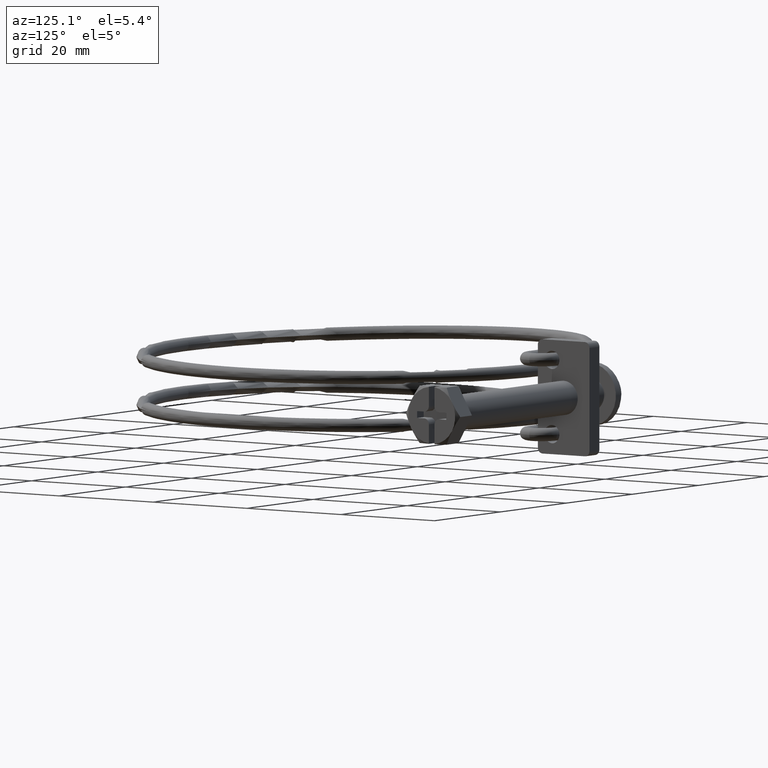
[diagram: clean part render]
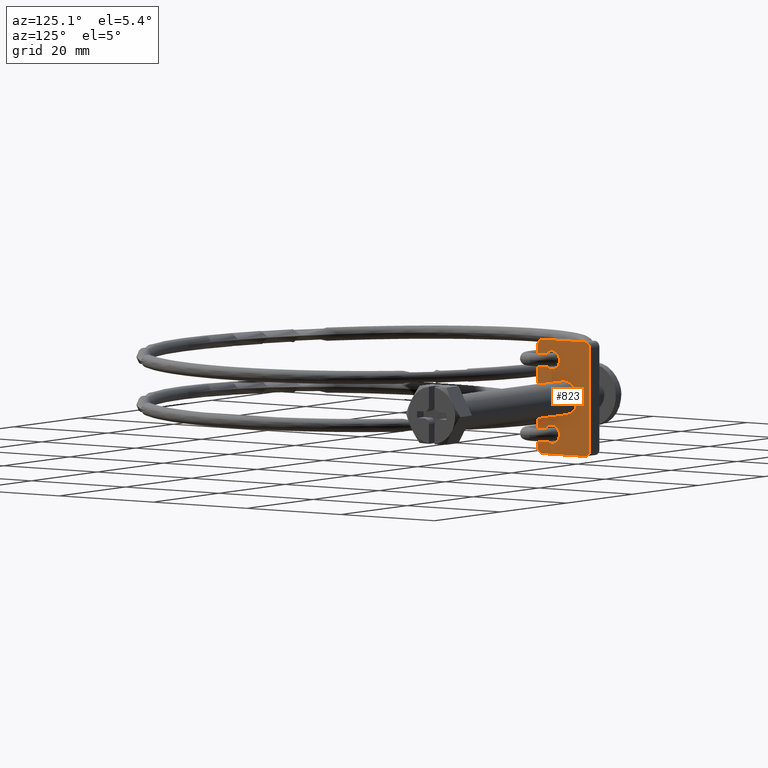
[diagram: same view with one face highlighted and labeled with its STEP entity id]
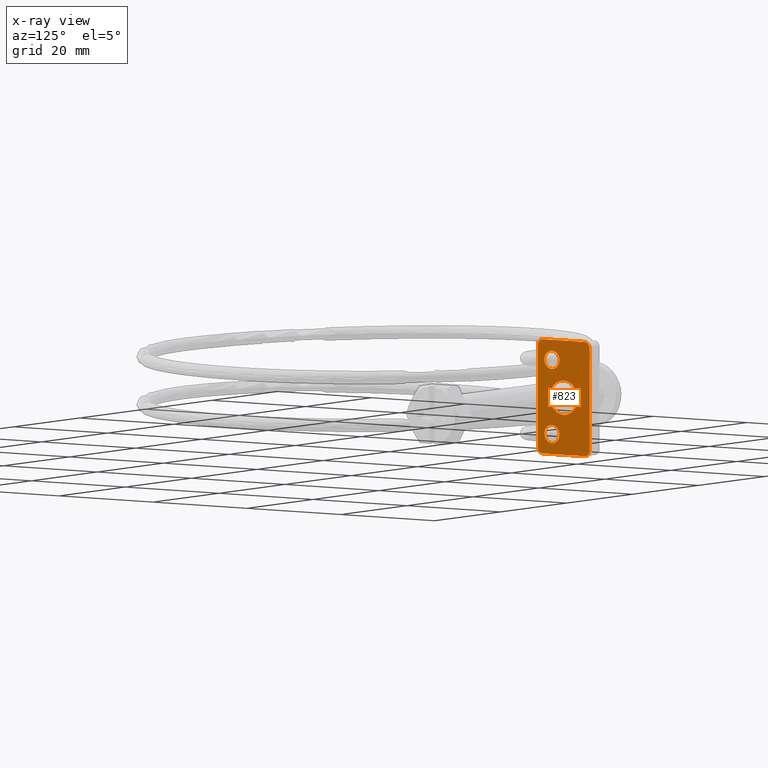
[diagram: x-ray of the same camera — body ghosted, the highlighted face saturated]
A machine part, auxiliary view. The second image highlights one B-rep face of the part: STEP entity #823.
The next image is the same camera in x-ray: the body ghosted, the highlighted face saturated — about 0% of this face is hidden behind the body in this view.
In plain terms, the highlighted planar face has unit normal (1, 0, 0).
Its self-contained STEP definition (entity closure, byte-faithful):
#2 = CARTESIAN_POINT ( 'NONE',  ( 1.500000000000000000, 3.673940397442060400E-016, 3.000000000000000400 ) ) ;
#14 = AXIS2_PLACEMENT_3D ( 'NONE', #476, #2150, #718 ) ;
#40 = CARTESIAN_POINT ( 'NONE',  ( 1.500000000000000000, 0.0000000000000000000, 0.0000000000000000000 ) ) ;
#56 = VECTOR ( 'NONE', #1395, 1000.000000000000000 ) ;
#95 = EDGE_CURVE ( 'NONE', #731, #2299, #675, .T. ) ;
#97 = ORIENTED_EDGE ( 'NONE', *, *, #1389, .F. ) ;
#130 = VERTEX_POINT ( 'NONE', #1800 ) ;
#137 = ORIENTED_EDGE ( 'NONE', *, *, #2644, .T. ) ;
#149 = EDGE_CURVE ( 'NONE', #1674, #2841, #837, .T. ) ;
#172 = VECTOR ( 'NONE', #2662, 1000.000000000000000 ) ;
#184 = AXIS2_PLACEMENT_3D ( 'NONE', #2959, #1984, #553 ) ;
#187 = VECTOR ( 'NONE', #3028, 1000.000000000000000 ) ;
#192 = CARTESIAN_POINT ( 'NONE',  ( 1.500000000000000000, 0.0000000000000000000, -3.000000000000000400 ) ) ;
#210 = ORIENTED_EDGE ( 'NONE', *, *, #2596, .F. ) ;
#235 = ORIENTED_EDGE ( 'NONE', *, *, #403, .F. ) ;
#245 = CARTESIAN_POINT ( 'NONE',  ( 1.500000000000000000, -5.500000000000000000, 10.00000000000000000 ) ) ;
#285 = DIRECTION ( 'NONE',  ( 0.0000000000000000000, 0.0000000000000000000, -1.000000000000000000 ) ) ;
#306 = CARTESIAN_POINT ( 'NONE',  ( 1.500000000000000000, 0.0000000000000000000, 0.0000000000000000000 ) ) ;
#308 = DIRECTION ( 'NONE',  ( 1.000000000000000000, 0.0000000000000000000, 0.0000000000000000000 ) ) ;
#403 = EDGE_CURVE ( 'NONE', #3110, #2311, #874, .T. ) ;
#432 = CARTESIAN_POINT ( 'NONE',  ( 1.500000000000000000, 5.500000000000000000, 9.000000000000001800 ) ) ;
#476 = CARTESIAN_POINT ( 'NONE',  ( 1.500000000000000000, -2.499999999999999100, -6.500000000000000000 ) ) ;
#541 = DIRECTION ( 'NONE',  ( 0.0000000000000000000, 0.0000000000000000000, -1.000000000000000000 ) ) ;
#546 = EDGE_CURVE ( 'NONE', #1681, #1674, #1146, .T. ) ;
#553 = DIRECTION ( 'NONE',  ( 0.0000000000000000000, 0.0000000000000000000, -1.000000000000000000 ) ) ;
#567 = DIRECTION ( 'NONE',  ( 1.000000000000000000, 0.0000000000000000000, 0.0000000000000000000 ) ) ;
#588 = CARTESIAN_POINT ( 'NONE',  ( 1.500000000000000000, 5.500000000000000000, 10.00000000000000000 ) ) ;
#605 = AXIS2_PLACEMENT_3D ( 'NONE', #1169, #2863, #1403 ) ;
#637 = VERTEX_POINT ( 'NONE', #853 ) ;
#647 = ORIENTED_EDGE ( 'NONE', *, *, #2888, .T. ) ;
#675 = LINE ( 'NONE', #588, #976 ) ;
#687 = CIRCLE ( 'NONE', #1898, 3.000000000000000400 ) ;
#688 = EDGE_CURVE ( 'NONE', #1711, #2941, #1629, .T. ) ;
#704 = CARTESIAN_POINT ( 'NONE',  ( 1.500000000000000000, -2.499999999999999100, 6.500000000000000000 ) ) ;
#718 = DIRECTION ( 'NONE',  ( 0.0000000000000000000, 0.0000000000000000000, -1.000000000000000000 ) ) ;
#721 = CIRCLE ( 'NONE', #2883, 1.599999999999999900 ) ;
#731 = VERTEX_POINT ( 'NONE', #933 ) ;
#748 = ORIENTED_EDGE ( 'NONE', *, *, #3111, .F. ) ;
#784 = AXIS2_PLACEMENT_3D ( 'NONE', #1992, #567, #2250 ) ;
#802 = CARTESIAN_POINT ( 'NONE',  ( 1.500000000000000000, -5.500000000000000000, 9.000000000000001800 ) ) ;
#803 = CARTESIAN_POINT ( 'NONE',  ( 1.500000000000000000, -2.499999999999999100, -8.099999999999999600 ) ) ;
#806 = CARTESIAN_POINT ( 'NONE',  ( 1.500000000000000000, -5.500000000000000000, -9.000000000000003600 ) ) ;
#823 = ADVANCED_FACE ( 'NONE', ( #1114, #2371, #2303, #2964 ), #2717, .T. ) ;
#837 = LINE ( 'NONE', #1577, #187 ) ;
#853 = CARTESIAN_POINT ( 'NONE',  ( 1.500000000000000000, -2.499999999999999100, -4.899999999999998600 ) ) ;
#874 = CIRCLE ( 'NONE', #1282, 3.000000000000000400 ) ;
#933 = CARTESIAN_POINT ( 'NONE',  ( 1.500000000000000000, 5.500000000000000000, -9.000000000000003600 ) ) ;
#954 = DIRECTION ( 'NONE',  ( 0.0000000000000000000, 0.0000000000000000000, -1.000000000000000000 ) ) ;
#976 = VECTOR ( 'NONE', #1077, 1000.000000000000000 ) ;
#998 = CARTESIAN_POINT ( 'NONE',  ( 1.500000000000000000, -4.499999999999999100, 10.00000000000000000 ) ) ;
#1008 = CARTESIAN_POINT ( 'NONE',  ( 1.500000000000000000, -2.499999999999999100, -6.500000000000000000 ) ) ;
#1073 = DIRECTION ( 'NONE',  ( 1.000000000000000000, 0.0000000000000000000, 0.0000000000000000000 ) ) ;
#1077 = DIRECTION ( 'NONE',  ( -0.0000000000000000000, -0.0000000000000000000, 1.000000000000000000 ) ) ;
#1114 = FACE_BOUND ( 'NONE', #2036, .T. ) ;
#1146 = CIRCLE ( 'NONE', #2891, 1.000000000000000900 ) ;
#1150 = ORIENTED_EDGE ( 'NONE', *, *, #3083, .T. ) ;
#1159 = EDGE_LOOP ( 'NONE', ( #1697, #2176 ) ) ;
#1163 = CARTESIAN_POINT ( 'NONE',  ( 1.500000000000000000, 5.500000000000000000, 10.00000000000000000 ) ) ;
#1169 = CARTESIAN_POINT ( 'NONE',  ( 1.500000000000000000, 4.500000000000000000, 9.000000000000001800 ) ) ;
#1187 = ORIENTED_EDGE ( 'NONE', *, *, #546, .T. ) ;
#1239 = CARTESIAN_POINT ( 'NONE',  ( 1.500000000000000000, -4.499999999999999100, -9.000000000000001800 ) ) ;
#1244 = DIRECTION ( 'NONE',  ( 0.0000000000000000000, 0.0000000000000000000, -1.000000000000000000 ) ) ;
#1282 = AXIS2_PLACEMENT_3D ( 'NONE', #40, #1710, #285 ) ;
#1306 = EDGE_CURVE ( 'NONE', #2299, #1711, #2904, .T. ) ;
#1389 = EDGE_CURVE ( 'NONE', #1469, #637, #1454, .T. ) ;
#1395 = DIRECTION ( 'NONE',  ( 0.0000000000000000000, -1.000000000000000000, 0.0000000000000000000 ) ) ;
#1396 = CIRCLE ( 'NONE', #2826, 1.000000000000000900 ) ;
#1403 = DIRECTION ( 'NONE',  ( 0.0000000000000000000, 0.0000000000000000000, -1.000000000000000000 ) ) ;
#1454 = CIRCLE ( 'NONE', #2205, 1.599999999999999900 ) ;
#1469 = VERTEX_POINT ( 'NONE', #803 ) ;
#1475 = DIRECTION ( 'NONE',  ( 0.0000000000000000000, 0.0000000000000000000, -1.000000000000000000 ) ) ;
#1574 = ORIENTED_EDGE ( 'NONE', *, *, #149, .T. ) ;
#1577 = CARTESIAN_POINT ( 'NONE',  ( 1.500000000000000000, 5.500000000000000000, -10.00000000000000000 ) ) ;
#1629 = LINE ( 'NONE', #1163, #56 ) ;
#1674 = VERTEX_POINT ( 'NONE', #2505 ) ;
#1681 = VERTEX_POINT ( 'NONE', #806 ) ;
#1697 = ORIENTED_EDGE ( 'NONE', *, *, #1729, .F. ) ;
#1710 = DIRECTION ( 'NONE',  ( 1.000000000000000000, 0.0000000000000000000, 0.0000000000000000000 ) ) ;
#1711 = VERTEX_POINT ( 'NONE', #1958 ) ;
#1729 = EDGE_CURVE ( 'NONE', #2844, #130, #1804, .T. ) ;
#1737 = CARTESIAN_POINT ( 'NONE',  ( 1.500000000000000000, -2.499999999999999100, 6.500000000000000000 ) ) ;
#1783 = VERTEX_POINT ( 'NONE', #802 ) ;
#1800 = CARTESIAN_POINT ( 'NONE',  ( 1.500000000000000000, -2.499999999999999100, 8.099999999999999600 ) ) ;
#1804 = CIRCLE ( 'NONE', #2974, 1.599999999999999900 ) ;
#1893 = CARTESIAN_POINT ( 'NONE',  ( 1.500000000000000000, -2.499999999999999100, 4.899999999999999500 ) ) ;
#1898 = AXIS2_PLACEMENT_3D ( 'NONE', #306, #1970, #541 ) ;
#1958 = CARTESIAN_POINT ( 'NONE',  ( 1.500000000000000000, 4.500000000000000000, 10.00000000000000000 ) ) ;
#1970 = DIRECTION ( 'NONE',  ( 1.000000000000000000, 0.0000000000000000000, 0.0000000000000000000 ) ) ;
#1973 = DIRECTION ( 'NONE',  ( 0.0000000000000000000, 0.0000000000000000000, -1.000000000000000000 ) ) ;
#1984 = DIRECTION ( 'NONE',  ( 1.000000000000000000, 0.0000000000000000000, 0.0000000000000000000 ) ) ;
#1992 = CARTESIAN_POINT ( 'NONE',  ( 1.500000000000000000, 4.500000000000000000, -9.000000000000003600 ) ) ;
#1994 = EDGE_LOOP ( 'NONE', ( #97, #748 ) ) ;
#2036 = EDGE_LOOP ( 'NONE', ( #210, #235 ) ) ;
#2051 = EDGE_LOOP ( 'NONE', ( #647, #1187, #1574, #137, #3005, #2633, #2273, #1150 ) ) ;
#2150 = DIRECTION ( 'NONE',  ( 1.000000000000000000, 0.0000000000000000000, 0.0000000000000000000 ) ) ;
#2176 = ORIENTED_EDGE ( 'NONE', *, *, #2820, .F. ) ;
#2205 = AXIS2_PLACEMENT_3D ( 'NONE', #1008, #2695, #1244 ) ;
#2250 = DIRECTION ( 'NONE',  ( 0.0000000000000000000, 0.0000000000000000000, -1.000000000000000000 ) ) ;
#2273 = ORIENTED_EDGE ( 'NONE', *, *, #688, .T. ) ;
#2299 = VERTEX_POINT ( 'NONE', #432 ) ;
#2303 = FACE_BOUND ( 'NONE', #1159, .T. ) ;
#2311 = VERTEX_POINT ( 'NONE', #192 ) ;
#2371 = FACE_BOUND ( 'NONE', #1994, .T. ) ;
#2386 = DIRECTION ( 'NONE',  ( 1.000000000000000000, 0.0000000000000000000, 0.0000000000000000000 ) ) ;
#2436 = CIRCLE ( 'NONE', #14, 1.599999999999999900 ) ;
#2505 = CARTESIAN_POINT ( 'NONE',  ( 1.500000000000000000, -4.499999999999999100, -10.00000000000000000 ) ) ;
#2523 = CARTESIAN_POINT ( 'NONE',  ( 1.500000000000000000, -4.500000000000000000, 9.000000000000001800 ) ) ;
#2524 = LINE ( 'NONE', #245, #172 ) ;
#2596 = EDGE_CURVE ( 'NONE', #2311, #3110, #687, .T. ) ;
#2633 = ORIENTED_EDGE ( 'NONE', *, *, #1306, .T. ) ;
#2637 = CARTESIAN_POINT ( 'NONE',  ( 1.500000000000000000, 4.500000000000000000, -10.00000000000000000 ) ) ;
#2644 = EDGE_CURVE ( 'NONE', #2841, #731, #3108, .T. ) ;
#2662 = DIRECTION ( 'NONE',  ( 0.0000000000000000000, 0.0000000000000000000, -1.000000000000000000 ) ) ;
#2695 = DIRECTION ( 'NONE',  ( 1.000000000000000000, 0.0000000000000000000, 0.0000000000000000000 ) ) ;
#2717 = PLANE ( 'NONE',  #184 ) ;
#2767 = DIRECTION ( 'NONE',  ( 0.0000000000000000000, 0.0000000000000000000, -1.000000000000000000 ) ) ;
#2820 = EDGE_CURVE ( 'NONE', #130, #2844, #721, .T. ) ;
#2826 = AXIS2_PLACEMENT_3D ( 'NONE', #2523, #1073, #2767 ) ;
#2841 = VERTEX_POINT ( 'NONE', #2637 ) ;
#2844 = VERTEX_POINT ( 'NONE', #1893 ) ;
#2863 = DIRECTION ( 'NONE',  ( 1.000000000000000000, 0.0000000000000000000, 0.0000000000000000000 ) ) ;
#2883 = AXIS2_PLACEMENT_3D ( 'NONE', #704, #2386, #954 ) ;
#2888 = EDGE_CURVE ( 'NONE', #1783, #1681, #2524, .T. ) ;
#2891 = AXIS2_PLACEMENT_3D ( 'NONE', #1239, #2931, #1475 ) ;
#2904 = CIRCLE ( 'NONE', #605, 1.000000000000000900 ) ;
#2931 = DIRECTION ( 'NONE',  ( 1.000000000000000000, 0.0000000000000000000, 0.0000000000000000000 ) ) ;
#2941 = VERTEX_POINT ( 'NONE', #998 ) ;
#2959 = CARTESIAN_POINT ( 'NONE',  ( 1.500000000000000000, 0.0000000000000000000, 0.0000000000000000000 ) ) ;
#2964 = FACE_OUTER_BOUND ( 'NONE', #2051, .T. ) ;
#2974 = AXIS2_PLACEMENT_3D ( 'NONE', #1737, #308, #1973 ) ;
#3005 = ORIENTED_EDGE ( 'NONE', *, *, #95, .T. ) ;
#3028 = DIRECTION ( 'NONE',  ( -0.0000000000000000000, 1.000000000000000000, -0.0000000000000000000 ) ) ;
#3083 = EDGE_CURVE ( 'NONE', #2941, #1783, #1396, .T. ) ;
#3108 = CIRCLE ( 'NONE', #784, 0.9999999999999991100 ) ;
#3110 = VERTEX_POINT ( 'NONE', #2 ) ;
#3111 = EDGE_CURVE ( 'NONE', #637, #1469, #2436, .T. ) ;